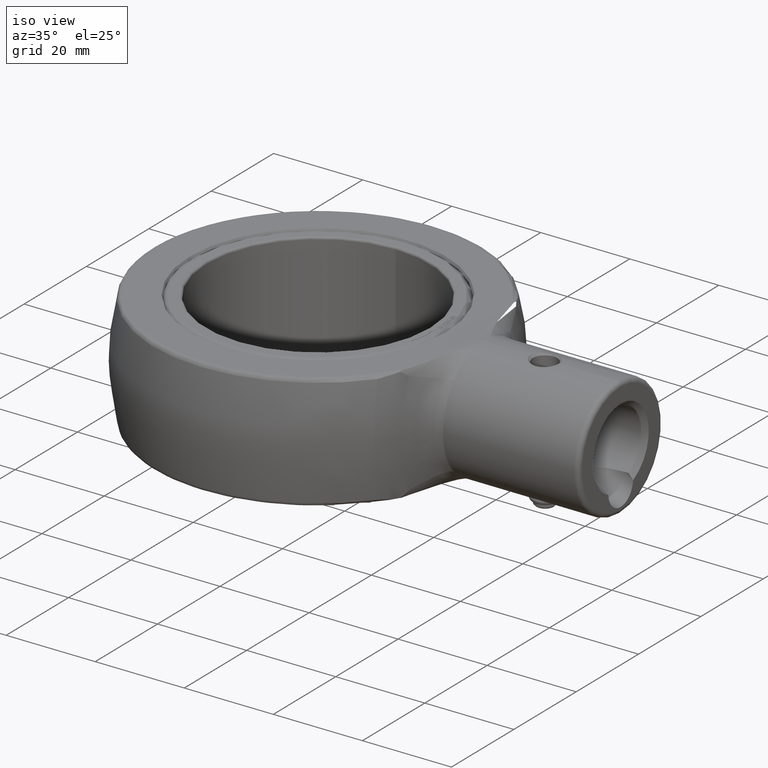
[diagram: clean part render]
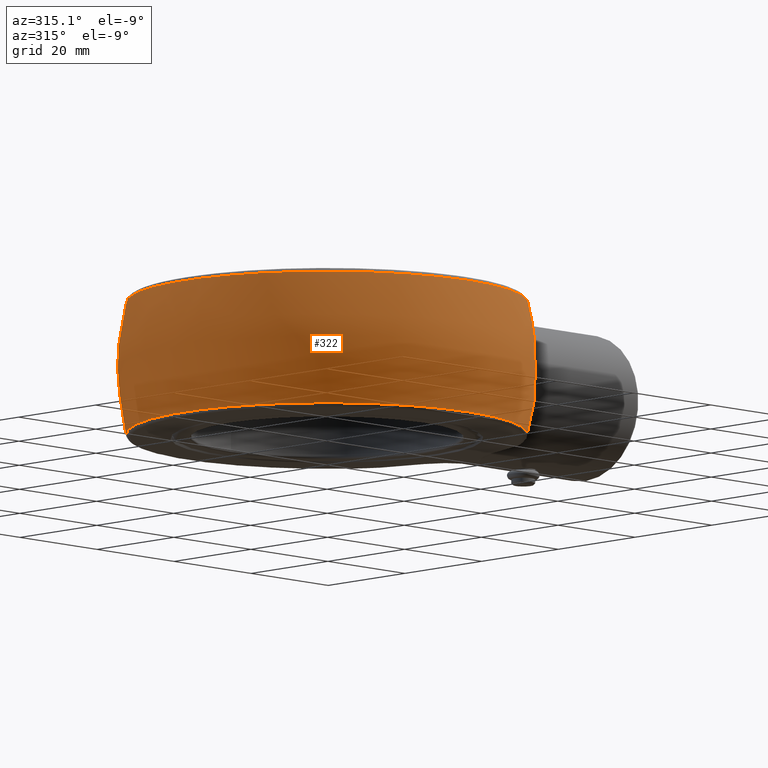
[diagram: tour spotlight — one face highlighted and labeled with its STEP entity id]
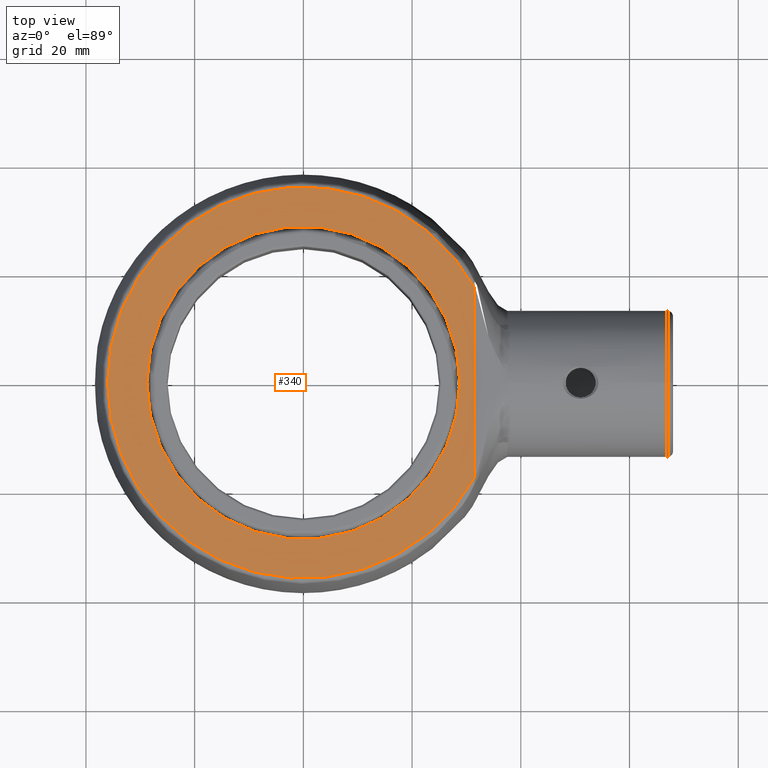
[diagram: tour spotlight — one face highlighted and labeled with its STEP entity id]
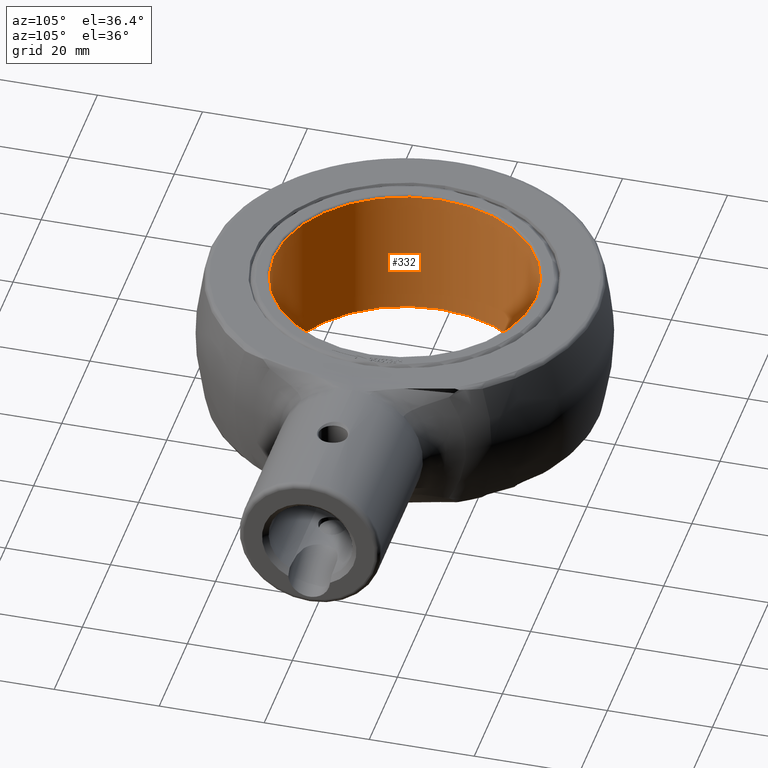
[diagram: tour spotlight — one face highlighted and labeled with its STEP entity id]
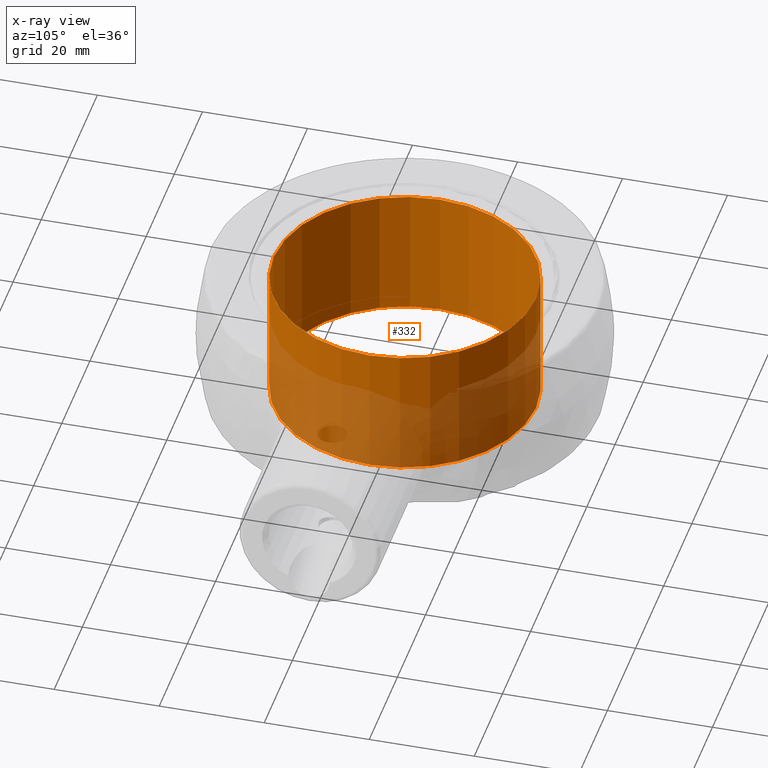
[diagram: x-ray of the same camera — body ghosted, this tour face saturated]
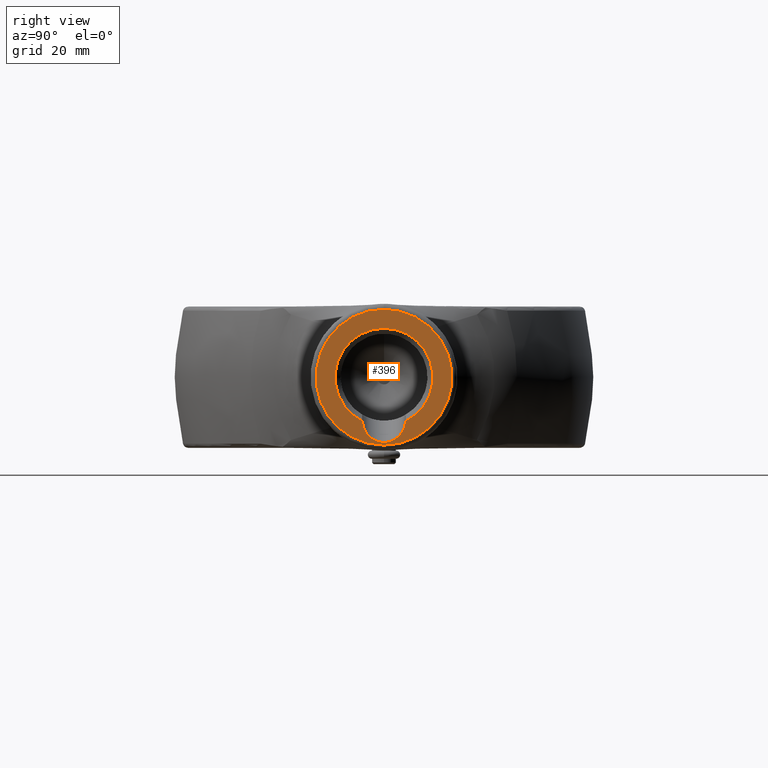
[diagram: tour spotlight — one face highlighted and labeled with its STEP entity id]
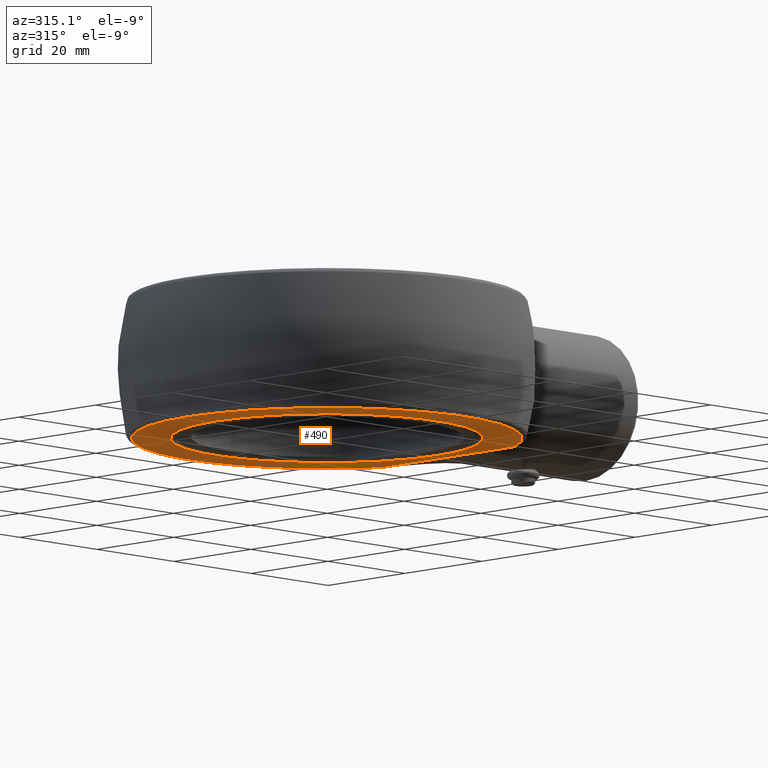
[diagram: tour spotlight — one face highlighted and labeled with its STEP entity id]
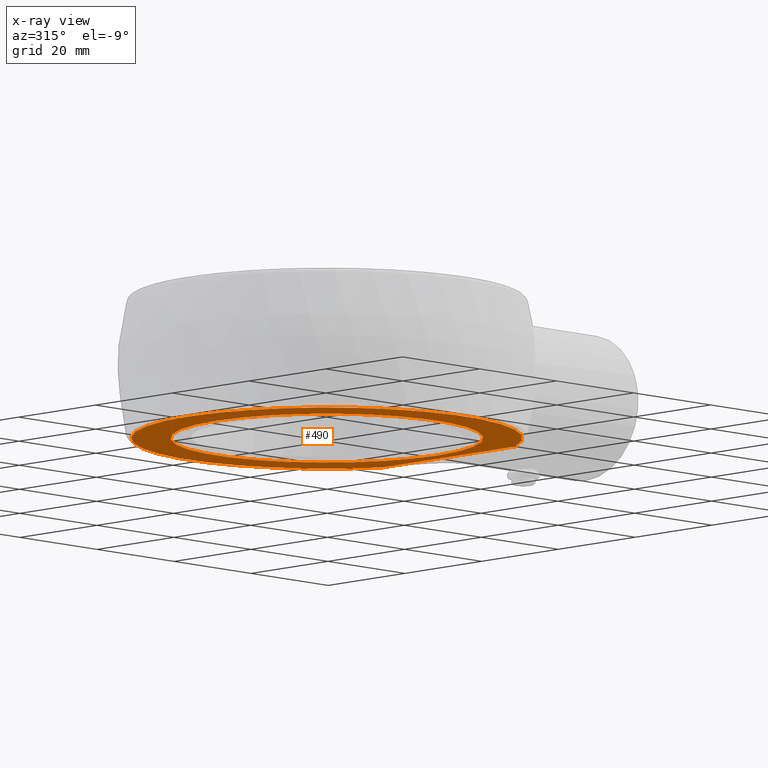
[diagram: x-ray of the same camera — body ghosted, this tour face saturated]
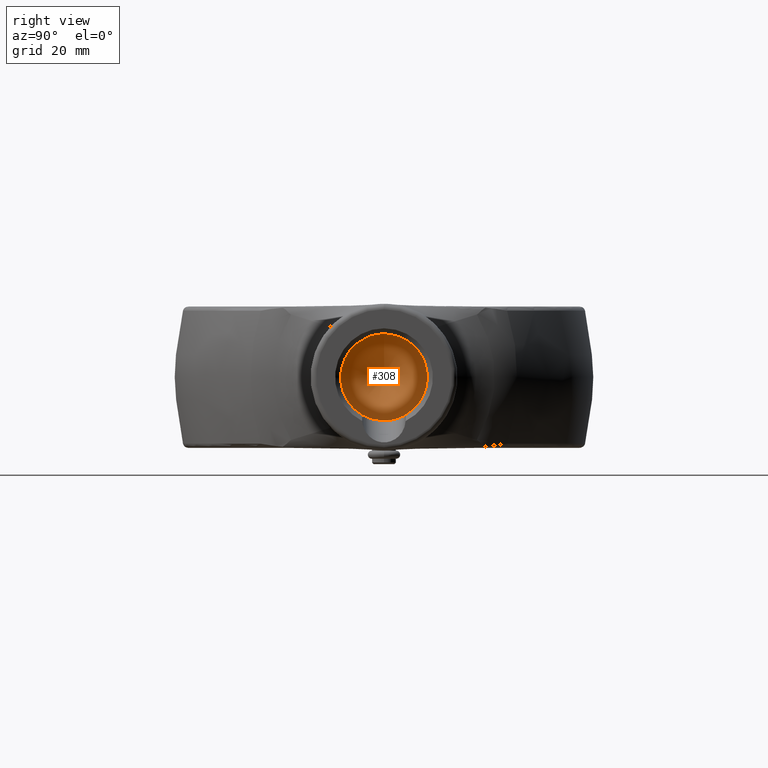
[diagram: tour spotlight — one face highlighted and labeled with its STEP entity id]
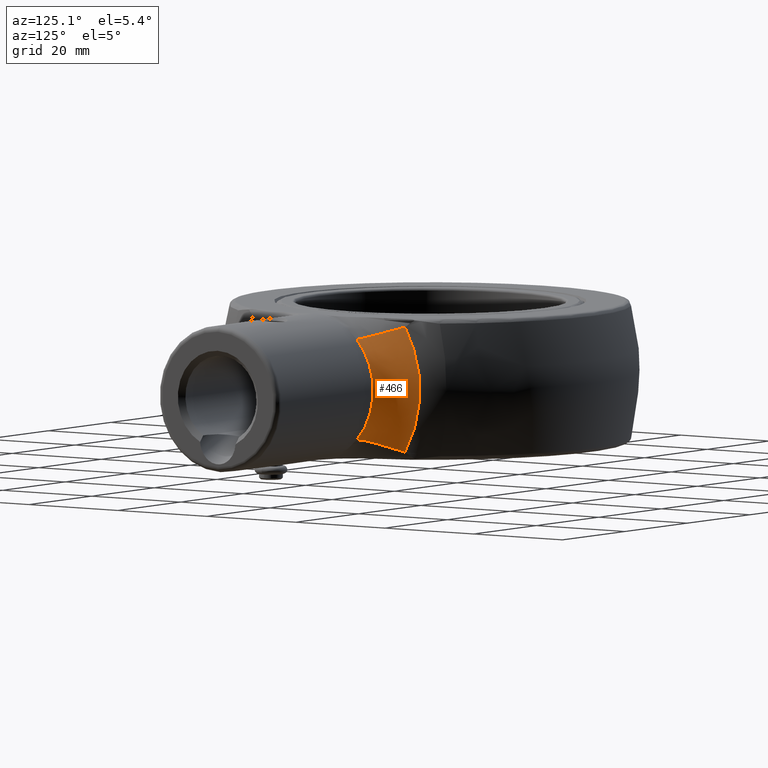
[diagram: tour spotlight — one face highlighted and labeled with its STEP entity id]
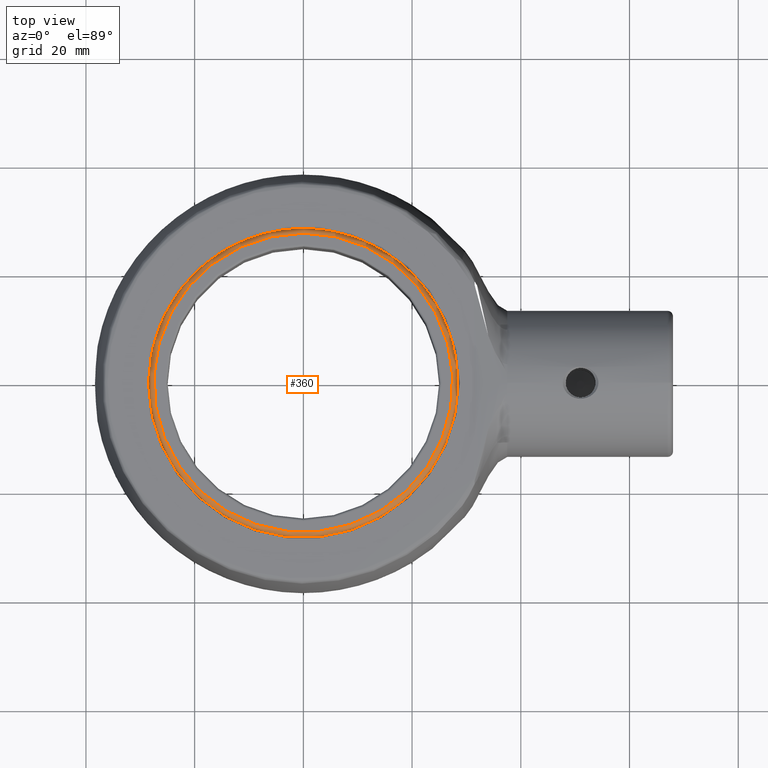
[diagram: tour spotlight — one face highlighted and labeled with its STEP entity id]
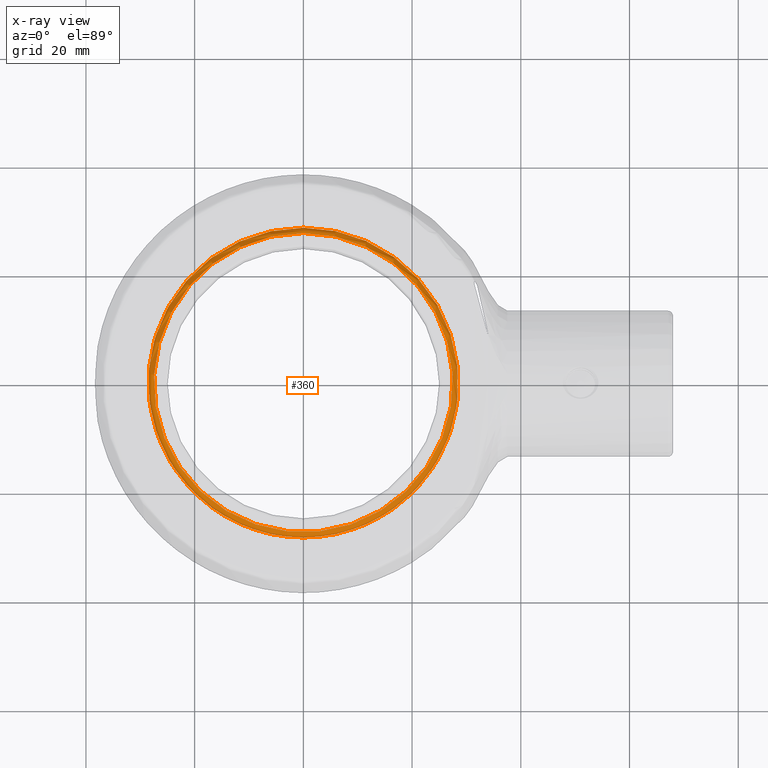
[diagram: x-ray of the same camera — body ghosted, this tour face saturated]
A machine part: a face-by-face anatomy tour. The part has 132 B-rep faces; the first image is the clean iso view, then the 8 largest visible faces are spotlighted one at a time (largest first), each with its STEP entity span.

Face 1 — auxiliary view, entity #322. In plain terms, the highlighted face is a freeform B-spline surface patch.
Definition (entity closure, byte-faithful):
#322 = ADVANCED_FACE( '', ( #688 ), #689, .T. );
#688 = FACE_OUTER_BOUND( '', #1222, .T. );
#689 = ( BOUNDED_SURFACE(  )B_SPLINE_SURFACE( 3, 3, ( ( #1225, #1226, #1227, #1228, #1229, #1230, #1231 ), ( #1232, #1233, #1234, #1235, #1236, #1237, #1238 ), ( #1239, #1240, #1241, #1242, #1243, #1244, #1245 ), ( #1246, #1247, #1248, #1249, #1250, #1251, #1252 ) ), .UNSPECIFIED., .F., .F., .F. )B_SPLINE_SURFACE_WITH_KNOTS( ( 4, 4 ), ( 4, 3, 4 ), ( 0.629286443867117, 5.65389888873463 ), ( -0.247414445467668, 4.90996132640475E-014, 0.247414445467766 ), .UNSPECIFIED. )GEOMETRIC_REPRESENTATION_ITEM(  )RATIONAL_B_SPLINE_SURFACE( ( ( 1.00000000000000, 0.539651481452843, 0.539651481452843, 1.00000000000000, 0.539651481452843, 0.539651481452843, 1.00000000000000 ), ( 0.979699239195622, 0.528696145810140, 0.528696145810140, 0.979699239195622, 0.528696145810140, 0.528696145810140, 0.979699239195622 ), ( 0.979699239195622, 0.528696145810140, 0.528696145810140, 0.979699239195622, 0.528696145810140, 0.528696145810140, 0.979699239195622 ), ( 1.00000000000000, 0.539651481452843, 0.539651481452843, 1.00000000000000, 0.539651481452843, 0.539651481452843, 1.00000000000000 ) ) )REPRESENTATION_ITEM( '' )SURFACE(  ) );
#1222 = EDGE_LOOP( '', ( #3517, #3518, #3519, #3520 ) );
#1225 = CARTESIAN_POINT( '', ( 29.8943283423282, 21.7637409311382, 12.2448979591884 ) );
#1226 = CARTESIAN_POINT( '', ( 4.32808645377582, 56.8811241013393, 12.2448979591884 ) );
#1227 = CARTESIAN_POINT( '', ( -36.9774434918154, 43.4380395988691, 12.2448979591884 ) );
#1228 = CARTESIAN_POINT( '', ( -36.9774429396711, -4.70023235610295E-007, 12.2448979591884 ) );
#1229 = CARTESIAN_POINT( '', ( -36.9774423875267, -43.4380405389155, 12.2448979591884 ) );
#1230 = CARTESIAN_POINT( '', ( 4.32808789981685, -56.8811239913100, 12.2448979591884 ) );
#1231 = CARTESIAN_POINT( '', ( 29.8943288956095, -21.7637401711598, 12.2448979591884 ) );
#1232 = CARTESIAN_POINT( '', ( 31.5440407136060, 22.9647685056078, 4.16620988336752 ) );
#1233 = CARTESIAN_POINT( '', ( 4.56693101602826, 60.0200972552972, 4.16620988336752 ) );
#1234 = CARTESIAN_POINT( '', ( -39.0180361182201, 45.8351588948676, 4.16620988336752 ) );
#1235 = CARTESIAN_POINT( '', ( -39.0180355356057, -4.95961372665166E-007, 4.16620988336752 ) );
#1236 = CARTESIAN_POINT( '', ( -39.0180349529914, -45.8351598867903, 4.16620988336752 ) );
#1237 = CARTESIAN_POINT( '', ( 4.56693254186877, -60.0200971391959, 4.16620988336752 ) );
#1238 = CARTESIAN_POINT( '', ( 31.5440412974201, -22.9647677036902, 4.16620988336752 ) );
#1239 = CARTESIAN_POINT( '', ( 31.5440407136064, 22.9647685056081, -4.16620988336260 ) );
#1240 = CARTESIAN_POINT( '', ( 4.56693101602830, 60.0200972552978, -4.16620988336260 ) );
#1241 = CARTESIAN_POINT( '', ( -39.0180361182205, 45.8351588948681, -4.16620988336260 ) );
#1242 = CARTESIAN_POINT( '', ( -39.0180355356062, -4.95961372665166E-007, -4.16620988336260 ) );
#1243 = CARTESIAN_POINT( '', ( -39.0180349529918, -45.8351598867908, -4.16620988336260 ) );
#1244 = CARTESIAN_POINT( '', ( 4.56693254186882, -60.0200971391965, -4.16620988336260 ) );
#1245 = CARTESIAN_POINT( '', ( 31.5440412974204, -22.9647677036904, -4.16620988336260 ) );
#1246 = CARTESIAN_POINT( '', ( 29.8943283423292, 21.7637409311389, -12.2448979591837 ) );
#1247 = CARTESIAN_POINT( '', ( 4.32808645377596, 56.8811241013411, -12.2448979591837 ) );
#1248 = CARTESIAN_POINT( '', ( -36.9774434918167, 43.4380395988705, -12.2448979591837 ) );
#1249 = CARTESIAN_POINT( '', ( -36.9774429396722, -4.70023239079742E-007, -12.2448979591837 ) );
#1250 = CARTESIAN_POINT( '', ( -36.9774423875278, -43.4380405389169, -12.2448979591837 ) );
#1251 = CARTESIAN_POINT( '', ( 4.32808789981700, -56.8811239913118, -12.2448979591837 ) );
#1252 = CARTESIAN_POINT( '', ( 29.8943288956105, -21.7637401711605, -12.2448979591837 ) );
#3517 = ORIENTED_EDGE( '', *, *, #4612, .F. );
#3518 = ORIENTED_EDGE( '', *, *, #4613, .T. );
#3519 = ORIENTED_EDGE( '', *, *, #4614, .T. );
#3520 = ORIENTED_EDGE( '', *, *, #4615, .T. );
#4612 = EDGE_CURVE( '', #5143, #5144, #5145, .T. );
#4613 = EDGE_CURVE( '', #5143, #5146, #5147, .T. );
#4614 = EDGE_CURVE( '', #5146, #5148, #5149, .T. );
#4615 = EDGE_CURVE( '', #5148, #5144, #5150, .T. );
#5143 = VERTEX_POINT( '', #6406 );
#5144 = VERTEX_POINT( '', #6407 );
#5145 = CIRCLE( '', #6408, 36.9774429396723 );
#5146 = VERTEX_POINT( '', #6409 );
#5147 = B_SPLINE_CURVE_WITH_KNOTS( '', 3, ( #6410, #6411, #6412, #6413, #6414, #6415, #6416, #6417, #6418, #6419, #6420, #6421, #6422, #6423, #6424, #6425, #6426, #6427, #6428, #6429, #6430, #6431, #6432, #6433, #6434, #6435, #6436, #6437, #6438, #6439, #6440, #6441, #6442, #6443, #6444, #6445, #6446, #6447, #6448, #6449, #6450, #6451, #6452, #6453, #6454, #6455, #6456, #6457, #6458, #6459, #6460, #6461, #6462, #6463 ), .UNSPECIFIED., .F., .F., ( 4, 2, 2, 2, 1, 1, 1, 2, 2, 1, 1, 2, 2, 1, 1, 1, 2, 2, 1, 2, 2, 1, 1, 2, 1, 1, 2, 1, 1, 1, 2, 2, 2, 2, 4 ), ( 4.85928125488946E-015, 0.00154237255702064, 0.00231355883552853, 0.00269915197478248, 0.00308474511403643, 0.00385593139254432, 0.00462711767105221, 0.00539830394956010, 0.00616949022806800, 0.00694067650657589, 0.00771186278508378, 0.00848304906359167, 0.00925423534209957, 0.0100254216206075, 0.0107966078991154, 0.0115677941776232, 0.0123389804561311, 0.0131101667346390, 0.0138813530131469, 0.0146525392916548, 0.0150381324309088, 0.0152309290005357, 0.0154237255701627, 0.0161949118486706, 0.0169660981271785, 0.0177372844056864, 0.0185084706841943, 0.0192796569627022, 0.0200508432412101, 0.0208220295197180, 0.0215932157982259, 0.0219788089374799, 0.0223644020767338, 0.0231355883552417, 0.0246779609122575 ), .UNSPECIFIED. );
#5148 = VERTEX_POINT( '', #6464 );
#5149 = CIRCLE( '', #6465, 36.9774429396723 );
#5150 = B_SPLINE_CURVE_WITH_KNOTS( '', 3, ( #6466, #6467, #6468, #6469, #6470, #6471, #6472, #6473, #6474, #6475, #6476, #6477, #6478, #6479, #6480, #6481, #6482, #6483, #6484, #6485, #6486, #6487, #6488, #6489, #6490, #6491, #6492, #6493, #6494, #6495, #6496, #6497, #6498, #6499, #6500, #6501, #6502, #6503, #6504, #6505, #6506, #6507, #6508, #6509, #6510, #6511, #6512, #6513, #6514, #6515, #6516, #6517, #6518, #6519 ), .UNSPECIFIED., .F., .F., ( 4, 2, 2, 2, 1, 1, 1, 2, 2, 1, 1, 2, 2, 1, 1, 1, 2, 2, 1, 2, 2, 1, 1, 2, 1, 1, 2, 1, 1, 1, 2, 2, 2, 2, 4 ), ( 0.000000000000000, 0.00154237218361602, 0.00231355827542402, 0.00269915132132802, 0.00308474436723202, 0.00385593045904002, 0.00462711655084801, 0.00539830264265601, 0.00616948873446401, 0.00694067482627200, 0.00771186091808000, 0.00848304700988799, 0.00925423310169599, 0.0100254191935040, 0.0107966052853120, 0.0115677913771200, 0.0123389774689280, 0.0131101635607360, 0.0138813496525440, 0.0146525357443520, 0.0150381287902560, 0.0152309253132080, 0.0154237218361600, 0.0161949079279680, 0.0169660940197760, 0.0177372801115840, 0.0185084662033920, 0.0192796522952000, 0.0200508383870080, 0.0208220244788160, 0.0215932105706240, 0.0219788036165280, 0.0223643966624320, 0.0231355827542400, 0.0246779549378560 ), .UNSPECIFIED. );
#6406 = CARTESIAN_POINT( '', ( 29.2328142426363, 22.6445105447708, 12.2448979591837 ) );
#6407 = CARTESIAN_POINT( '', ( 29.2328104763663, -22.6445154068170, 12.2448979591837 ) );
#6408 = AXIS2_PLACEMENT_3D( '', #8024, #8025, #8026 );
#6409 = CARTESIAN_POINT( '', ( 29.2328113888119, 22.6445142289004, -12.2448979591837 ) );
#6410 = CARTESIAN_POINT( '', ( 29.2328142426353, 22.6445105447701, 12.2448979591884 ) );
#6411 = CARTESIAN_POINT( '', ( 29.2645161411204, 22.8088594160452, 11.7472237668461 ) );
#6412 = CARTESIAN_POINT( '', ( 29.2957243803255, 22.9603639688148, 11.2480296797230 ) );
#6413 = CARTESIAN_POINT( '', ( 29.3412179173516, 23.1697044278590, 10.4971001562029 ) );
#6414 = CARTESIAN_POINT( '', ( 29.3561598524112, 23.2364995550760, 10.2464339570533 ) );
#6415 = CARTESIAN_POINT( '', ( 29.3781373567005, 23.3323995075382, 9.86991883267990 ) );
#6416 = CARTESIAN_POINT( '', ( 29.3853846198346, 23.3636579007224, 9.74432848959739 ) );
#6417 = CARTESIAN_POINT( '', ( 29.3997424469967, 23.4247418931999, 9.49297588610308 ) );
#6418 = CARTESIAN_POINT( '', ( 29.4210898192104, 23.5141993979476, 9.11568729901739 ) );
#6419 = CARTESIAN_POINT( '', ( 29.4555350439036, 23.6527431248752, 8.48560317608981 ) );
#6420 = CARTESIAN_POINT( '', ( 29.4945436448488, 23.8028950549606, 7.72754742373591 ) );
#6421 = CARTESIAN_POINT( '', ( 29.5187368571013, 23.8926631773670, 7.22091305239744 ) );
#6422 = CARTESIAN_POINT( '', ( 29.5419420613533, 23.9773947412740, 6.71365961170200 ) );
#6423 = CARTESIAN_POINT( '', ( 29.5530422710075, 24.0172523203196, 6.45972429404276 ) );
#6424 = CARTESIAN_POINT( '', ( 29.5742852796128, 24.0919159770131, 5.95123372686326 ) );
#6425 = CARTESIAN_POINT( '', ( 29.5945450774769, 24.1615593666073, 5.44212613931742 ) );
#6426 = CARTESIAN_POINT( '', ( 29.6215042408585, 24.2515833348155, 4.67667236046842 ) );
#6427 = CARTESIAN_POINT( '', ( 29.6369670140362, 24.3022506604412, 4.16520110532109 ) );
#6428 = CARTESIAN_POINT( '', ( 29.6511211442461, 24.3483058191892, 3.65315120967681 ) );
#6429 = CARTESIAN_POINT( '', ( 29.6575392578517, 24.3690328943070, 3.39683746104258 ) );
#6430 = CARTESIAN_POINT( '', ( 29.6690963189215, 24.4058296484746, 2.88362687819902 ) );
#6431 = CARTESIAN_POINT( '', ( 29.6793875648103, 24.4379528705845, 2.36983170631942 ) );
#6432 = CARTESIAN_POINT( '', ( 29.6906334920376, 24.4725407702270, 1.59742340775911 ) );
#6433 = CARTESIAN_POINT( '', ( 29.6974645880773, 24.4937309352665, 0.823316412307036 ) );
#6434 = CARTESIAN_POINT( '', ( 29.6990517090536, 24.4988935852422, 0.306108141656163 ) );
#6435 = CARTESIAN_POINT( '', ( 29.6992075084867, 24.4994730807223, -0.211678933334755 ) );
#6436 = CARTESIAN_POINT( '', ( 29.6985847532854, 24.4974530149922, -0.470863574556190 ) );
#6437 = CARTESIAN_POINT( '', ( 29.6958582665115, 24.4888441972238, -0.989811408212527 ) );
#6438 = CARTESIAN_POINT( '', ( 29.6916466606508, 24.4756717305207, -1.50933732299537 ) );
#6439 = CARTESIAN_POINT( '', ( 29.6844083157463, 24.4533348664414, -2.03002539034707 ) );
#6440 = CARTESIAN_POINT( '', ( 29.6778725449792, 24.4330653883755, -2.42098583251234 ) );
#6441 = CARTESIAN_POINT( '', ( 29.6755099662303, 24.4257220615385, -2.55138011181523 ) );
#6442 = CARTESIAN_POINT( '', ( 29.6716981007550, 24.4138106312540, -2.74708439419478 ) );
#6443 = CARTESIAN_POINT( '', ( 29.6690668562974, 24.4055684800641, -2.87762448632113 ) );
#6444 = CARTESIAN_POINT( '', ( 29.6606576447294, 24.3790718747205, -3.26889135322233 ) );
#6445 = CARTESIAN_POINT( '', ( 29.6526249195404, 24.3532548104885, -3.59420024413923 ) );
#6446 = CARTESIAN_POINT( '', ( 29.6384539207133, 24.3072090761026, -4.11374652289245 ) );
#6447 = CARTESIAN_POINT( '', ( 29.6229595060950, 24.2564305901847, -4.63234569630971 ) );
#6448 = CARTESIAN_POINT( '', ( 29.5958815164875, 24.1659900413963, -5.40739539669126 ) );
#6449 = CARTESIAN_POINT( '', ( 29.5754848143176, 24.0959686296601, -5.92216593078862 ) );
#6450 = CARTESIAN_POINT( '', ( 29.5540740437957, 24.0209073795248, -6.43594624065645 ) );
#6451 = CARTESIAN_POINT( '', ( 29.5316789484773, 23.9407708070515, -6.94873106548044 ) );
#6452 = CARTESIAN_POINT( '', ( 29.4951610143193, 23.8053205305200, -7.71491949171026 ) );
#6453 = CARTESIAN_POINT( '', ( 29.4559517623969, 23.6543323569972, -8.47807522513373 ) );
#6454 = CARTESIAN_POINT( '', ( 29.4282707066673, 23.5429852184694, -8.98477392726121 ) );
#6455 = CARTESIAN_POINT( '', ( 29.4070552779845, 23.4553004263915, -9.36399563748139 ) );
#6456 = CARTESIAN_POINT( '', ( 29.3999079670817, 23.4253760069571, -9.49026908962106 ) );
#6457 = CARTESIAN_POINT( '', ( 29.3854857125917, 23.3641026134242, -9.74254347457767 ) );
#6458 = CARTESIAN_POINT( '', ( 29.3782065284404, 23.3327587209666, -9.86854516167513 ) );
#6459 = CARTESIAN_POINT( '', ( 29.3561483611729, 23.2366178489415, -10.2461452631496 ) );
#6460 = CARTESIAN_POINT( '', ( 29.3411683897913, 23.1696885688804, -10.4973353040574 ) );
#6461 = CARTESIAN_POINT( '', ( 29.2956131506251, 22.9600704320736, -11.2492243351492 ) );
#6462 = CARTESIAN_POINT( '', ( 29.2644363172532, 22.8085427522780, -11.7482412763350 ) );
#6463 = CARTESIAN_POINT( '', ( 29.2328113888119, 22.6445142289004, -12.2448979591837 ) );
#6464 = CARTESIAN_POINT( '', ( 29.2328148183087, -22.6445098016096, -12.2448979591837 ) );
#6465 = AXIS2_PLACEMENT_3D( '', #8027, #8028, #8029 );
#6466 = CARTESIAN_POINT( '', ( 29.2328148183087, -22.6445098016096, -12.2448979591837 ) );
#6467 = CARTESIAN_POINT( '', ( 29.2645171979091, -22.8088580226381, -11.7472238486435 ) );
#6468 = CARTESIAN_POINT( '', ( 29.2957256667215, -22.9603622526119, -11.2480298719372 ) );
#6469 = CARTESIAN_POINT( '', ( 29.3412193763211, -23.1697024494539, -10.4971005316929 ) );
#6470 = CARTESIAN_POINT( '', ( 29.3561613765650, -23.2364974814461, -10.2464343923794 ) );
#6471 = CARTESIAN_POINT( '', ( 29.3781394058994, -23.3323967729583, -9.86991930864949 ) );
#6472 = CARTESIAN_POINT( '', ( 29.3853875090824, -23.3636541354927, -9.74432890332391 ) );
#6473 = CARTESIAN_POINT( '', ( 29.3997430927588, -23.4247408550308, -9.49297662234455 ) );
#6474 = CARTESIAN_POINT( '', ( 29.4210880311057, -23.5142013067634, -9.11568841163968 ) );
#6475 = CARTESIAN_POINT( '', ( 29.4555325050664, -23.6527459101241, -8.48560453712816 ) );
#6476 = CARTESIAN_POINT( '', ( 29.4945420822701, -23.8028966286263, -7.72754886921548 ) );
#6477 = CARTESIAN_POINT( '', ( 29.5187358446926, -23.8926640765841, -7.22091456503756 ) );
#6478 = CARTESIAN_POINT( '', ( 29.5419414811599, -23.9773951129752, -6.71366120441737 ) );
#6479 = CARTESIAN_POINT( '', ( 29.5530420417696, -24.0172522675869, -6.45972591144262 ) );
#6480 = CARTESIAN_POINT( '', ( 29.5742856980097, -24.0919151452790, -5.95123539935739 ) );
#6481 = CARTESIAN_POINT( '', ( 29.5945455731325, -24.1615584478335, -5.44212793056362 ) );
#6482 = CARTESIAN_POINT( '', ( 29.6215048395580, -24.2515823099512, -4.67667432987648 ) );
#6483 = CARTESIAN_POINT( '', ( 29.6369679516900, -24.3022492452771, -4.16520316233532 ) );
#6484 = CARTESIAN_POINT( '', ( 29.6511221946562, -24.3483042890691, -3.65315337923635 ) );
#6485 = CARTESIAN_POINT( '', ( 29.6575404092403, -24.3690312541575, -3.39683968163089 ) );
#6486 = CARTESIAN_POINT( '', ( 29.6690956083591, -24.4058302793277, -2.88362943209229 ) );
#6487 = CARTESIAN_POINT( '', ( 29.6793858991938, -24.4379546840686, -2.36983449151453 ) );
#6488 = CARTESIAN_POINT( '', ( 29.6906329160181, -24.4725413257143, -1.59742625558640 ) );
#6489 = CARTESIAN_POINT( '', ( 29.6974660914841, -24.4937290400954, -0.823319209577849 ) );
#6490 = CARTESIAN_POINT( '', ( 29.6990533504452, -24.4988915661998, -0.306111044498714 ) );
#6491 = CARTESIAN_POINT( '', ( 29.6992073307972, -24.4994733162916, 0.211675703733647 ) );
#6492 = CARTESIAN_POINT( '', ( 29.6985830509767, -24.4974551289366, 0.470860111787696 ) );
#6493 = CARTESIAN_POINT( '', ( 29.6958555724288, -24.4888475781398, 0.989807711904645 ) );
#6494 = CARTESIAN_POINT( '', ( 29.6916437658800, -24.4756754232636, 1.50933348285478 ) );
#6495 = CARTESIAN_POINT( '', ( 29.6844058773378, -24.4533380762499, 2.03002148191125 ) );
#6496 = CARTESIAN_POINT( '', ( 29.6778706372298, -24.4330680059620, 2.42098189491349 ) );
#6497 = CARTESIAN_POINT( '', ( 29.6755082698364, -24.4257244396419, 2.55137616852097 ) );
#6498 = CARTESIAN_POINT( '', ( 29.6716967928257, -24.4138125623990, 2.74708045071254 ) );
#6499 = CARTESIAN_POINT( '', ( 29.6690658315433, -24.4055700832249, 2.87762054858825 ) );
#6500 = CARTESIAN_POINT( '', ( 29.6606577147348, -24.3790721988234, 3.26888738952331 ) );
#6501 = CARTESIAN_POINT( '', ( 29.6526259577543, -24.3532540008258, 3.59419624879676 ) );
#6502 = CARTESIAN_POINT( '', ( 29.6384553442063, -24.3072078410795, 4.11374268294465 ) );
#6503 = CARTESIAN_POINT( '', ( 29.6229606938417, -24.2564296677128, 4.63234212117796 ) );
#6504 = CARTESIAN_POINT( '', ( 29.5958818248413, -24.1659901977104, 5.40739230894279 ) );
#6505 = CARTESIAN_POINT( '', ( 29.5754846033240, -24.0959694138740, 5.92216315424192 ) );
#6506 = CARTESIAN_POINT( '', ( 29.5540733391638, -24.0209087558223, 6.43594376992696 ) );
#6507 = CARTESIAN_POINT( '', ( 29.5316791596796, -23.9407710878625, 6.94872865025916 ) );
#6508 = CARTESIAN_POINT( '', ( 29.4951635221982, -23.8053180482037, 7.71491699335678 ) );
#6509 = CARTESIAN_POINT( '', ( 29.4559558313907, -23.6543279679106, 8.47807277015515 ) );
#6510 = CARTESIAN_POINT( '', ( 29.4282738306050, -23.5429819202046, 8.98477185135202 ) );
#6511 = CARTESIAN_POINT( '', ( 29.4070562561606, -23.4552996694414, 9.36399410178665 ) );
#6512 = CARTESIAN_POINT( '', ( 29.3999079894044, -23.4253763857435, 9.49026777686657 ) );
#6513 = CARTESIAN_POINT( '', ( 29.3854832175242, -23.3641059931666, 9.74254271615295 ) );
#6514 = CARTESIAN_POINT( '', ( 29.3782048657475, -23.3327610912675, 9.86854430771703 ) );
#6515 = CARTESIAN_POINT( '', ( 29.3561473725238, -23.2366193748262, 10.2461444467681 ) );
#6516 = CARTESIAN_POINT( '', ( 29.3411673556101, -23.1696901231043, 10.4973346004813 ) );
#6517 = CARTESIAN_POINT( '', ( 29.2956118447039, -22.9600722294572, 11.2492239934829 ) );
#6518 = CARTESIAN_POINT( '', ( 29.2644348498859, -22.8085446825079, 11.7482411716033 ) );
#6519 = CARTESIAN_POINT( '', ( 29.2328104763663, -22.6445154068169, 12.2448979591838 ) );
#8024 = CARTESIAN_POINT( '', ( 0.000000000000000, 0.000000000000000, 12.2448979591837 ) );
#8025 = DIRECTION( '', ( 0.000000000000000, 0.000000000000000, 1.00000000000000 ) );
#8026 = DIRECTION( '', ( 1.00000000000000, 0.000000000000000, 0.000000000000000 ) );
#8027 = CARTESIAN_POINT( '', ( 0.000000000000000, 0.000000000000000, -12.2448979591837 ) );
#8028 = DIRECTION( '', ( 0.000000000000000, 0.000000000000000, 1.00000000000000 ) );
#8029 = DIRECTION( '', ( 1.00000000000000, 0.000000000000000, 0.000000000000000 ) );

Face 2 — top view, entity #340. In plain terms, the highlighted planar face has unit normal (0, 0, 1).
Definition (entity closure, byte-faithful):
#340 = ADVANCED_FACE( '', ( #720, #721 ), #722, .T. );
#720 = FACE_OUTER_BOUND( '', #1290, .T. );
#721 = FACE_BOUND( '', #1291, .T. );
#722 = PLANE( '', #1292 );
#1290 = EDGE_LOOP( '', ( #3625, #3626 ) );
#1291 = EDGE_LOOP( '', ( #3627 ) );
#1292 = AXIS2_PLACEMENT_3D( '', #3628, #3629, #3630 );
#3625 = ORIENTED_EDGE( '', *, *, #4639, .T. );
#3626 = ORIENTED_EDGE( '', *, *, #4640, .T. );
#3627 = ORIENTED_EDGE( '', *, *, #4469, .T. );
#3628 = CARTESIAN_POINT( '', ( 36.0078940808788, 0.000000000000000, 13.0000000000000 ) );
#3629 = DIRECTION( '', ( 0.000000000000000, 0.000000000000000, 1.00000000000000 ) );
#3630 = DIRECTION( '', ( 1.00000000000000, 0.000000000000000, 0.000000000000000 ) );
#4469 = EDGE_CURVE( '', #4911, #4911, #4912, .T. );
#4639 = EDGE_CURVE( '', #5184, #5185, #5186, .T. );
#4640 = EDGE_CURVE( '', #5185, #5184, #5187, .T. );
#4911 = VERTEX_POINT( '', #5677 );
#4912 = CIRCLE( '', #5678, 28.7886751345948 );
#5184 = VERTEX_POINT( '', #6731 );
#5185 = VERTEX_POINT( '', #6732 );
#5186 = CIRCLE( '', #6733, 36.0078940808788 );
#5187 = LINE( '', #6734, #6735 );
#5677 = CARTESIAN_POINT( '', ( -28.7886751345948, 0.000000000000000, 13.0000000000000 ) );
#5678 = AXIS2_PLACEMENT_3D( '', #7957, #7958, #7959 );
#6731 = CARTESIAN_POINT( '', ( 31.5000000000000, 17.4447251666453, 13.0000000000000 ) );
#6732 = CARTESIAN_POINT( '', ( 31.5000000000000, -17.4447251666453, 13.0000000000000 ) );
#6733 = AXIS2_PLACEMENT_3D( '', #8041, #8042, #8043 );
#6734 = CARTESIAN_POINT( '', ( 31.5000000000000, 0.000000000000000, 13.0000000000000 ) );
#6735 = VECTOR( '', #8044, 1000.00000000000 );
#7957 = CARTESIAN_POINT( '', ( 0.000000000000000, 0.000000000000000, 13.0000000000000 ) );
#7958 = DIRECTION( '', ( 0.000000000000000, 0.000000000000000, -1.00000000000000 ) );
#7959 = DIRECTION( '', ( -1.00000000000000, 0.000000000000000, 0.000000000000000 ) );
#8041 = CARTESIAN_POINT( '', ( 0.000000000000000, 0.000000000000000, 13.0000000000000 ) );
#8042 = DIRECTION( '', ( 0.000000000000000, 0.000000000000000, 1.00000000000000 ) );
#8043 = DIRECTION( '', ( 1.00000000000000, 0.000000000000000, 0.000000000000000 ) );
#8044 = DIRECTION( '', ( 0.000000000000000, 1.00000000000000, 0.000000000000000 ) );

Face 3 — auxiliary view, entity #332. An x-ray twin of the same camera follows (body ghosted, this face saturated) — the face is partly hidden behind the body. In plain terms, the highlighted cylindrical surface (bore or boss wall) has radius 25 mm, axis along (0, 0, 1).
Definition (entity closure, byte-faithful):
#332 = ADVANCED_FACE( '', ( #707, #708 ), #709, .F. );
#707 = FACE_OUTER_BOUND( '', #1276, .T. );
#708 = FACE_OUTER_BOUND( '', #1277, .T. );
#709 = CYLINDRICAL_SURFACE( '', #1278, 25.0000000000000 );
#1276 = EDGE_LOOP( '', ( #3576 ) );
#1277 = EDGE_LOOP( '', ( #3577 ) );
#1278 = AXIS2_PLACEMENT_3D( '', #3578, #3579, #3580 );
#3576 = ORIENTED_EDGE( '', *, *, #4442, .T. );
#3577 = ORIENTED_EDGE( '', *, *, #4516, .T. );
#3578 = CARTESIAN_POINT( '', ( 0.000000000000000, 0.000000000000000, 54.0000000000000 ) );
#3579 = DIRECTION( '', ( -0.000000000000000, -0.000000000000000, 1.00000000000000 ) );
#3580 = DIRECTION( '', ( -1.00000000000000, 0.000000000000000, 0.000000000000000 ) );
#4442 = EDGE_CURVE( '', #4864, #4864, #4865, .F. );
#4516 = EDGE_CURVE( '', #4992, #4992, #4993, .F. );
#4864 = VERTEX_POINT( '', #5603 );
#4865 = CIRCLE( '', #5604, 25.0000000000000 );
#4992 = VERTEX_POINT( '', #5859 );
#4993 = CIRCLE( '', #5860, 25.0000000000000 );
#5603 = CARTESIAN_POINT( '', ( 25.0000000000000, 0.000000000000000, -12.5000000000000 ) );
#5604 = AXIS2_PLACEMENT_3D( '', #7940, #7941, #7942 );
#5859 = CARTESIAN_POINT( '', ( -25.0000000000000, 0.000000000000000, 12.5000000000000 ) );
#5860 = AXIS2_PLACEMENT_3D( '', #7988, #7989, #7990 );
#7940 = CARTESIAN_POINT( '', ( 0.000000000000000, 0.000000000000000, -12.5000000000000 ) );
#7941 = DIRECTION( '', ( 0.000000000000000, 0.000000000000000, 1.00000000000000 ) );
#7942 = DIRECTION( '', ( 1.00000000000000, 0.000000000000000, 0.000000000000000 ) );
#7988 = CARTESIAN_POINT( '', ( 0.000000000000000, 0.000000000000000, 12.5000000000000 ) );
#7989 = DIRECTION( '', ( 0.000000000000000, 0.000000000000000, -1.00000000000000 ) );
#7990 = DIRECTION( '', ( -1.00000000000000, 0.000000000000000, 0.000000000000000 ) );

Face 4 — right view, entity #396. In plain terms, the highlighted planar face has unit normal (-1, 0, 0).
Definition (entity closure, byte-faithful):
#396 = ADVANCED_FACE( '', ( #820, #821 ), #822, .F. );
#820 = FACE_OUTER_BOUND( '', #2067, .T. );
#821 = FACE_BOUND( '', #2068, .T. );
#822 = PLANE( '', #2069 );
#2067 = EDGE_LOOP( '', ( #3916 ) );
#2068 = EDGE_LOOP( '', ( #3917, #3918 ) );
#2069 = AXIS2_PLACEMENT_3D( '', #3919, #3920, #3921 );
#3916 = ORIENTED_EDGE( '', *, *, #4753, .T. );
#3917 = ORIENTED_EDGE( '', *, *, #4754, .F. );
#3918 = ORIENTED_EDGE( '', *, *, #4436, .T. );
#3919 = CARTESIAN_POINT( '', ( 68.0000000000000, 0.000000000000000, 0.000000000000000 ) );
#3920 = DIRECTION( '', ( -1.00000000000000, 0.000000000000000, 0.000000000000000 ) );
#3921 = DIRECTION( '', ( 0.000000000000000, 0.000000000000000, 1.00000000000000 ) );
#4436 = EDGE_CURVE( '', #4854, #4852, #4855, .T. );
#4753 = EDGE_CURVE( '', #5350, #5350, #5351, .F. );
#4754 = EDGE_CURVE( '', #4854, #4852, #5352, .F. );
#4852 = VERTEX_POINT( '', #5582 );
#4854 = VERTEX_POINT( '', #5587 );
#4855 = CIRCLE( '', #5588, 9.00000000000000 );
#5350 = VERTEX_POINT( '', #7471 );
#5351 = CIRCLE( '', #7472, 12.5000000000000 );
#5352 = ELLIPSE( '', #7473, 4.25671108990365, 4.00000000000000 );
#5582 = CARTESIAN_POINT( '', ( 68.0000000000000, 3.98809634791307, -8.06815267082635 ) );
#5587 = CARTESIAN_POINT( '', ( 68.0000000000000, -3.98809634791307, -8.06815267082635 ) );
#5588 = AXIS2_PLACEMENT_3D( '', #7931, #7932, #7933 );
#7471 = CARTESIAN_POINT( '', ( 68.0000000000000, 0.000000000000000, 12.5000000000000 ) );
#7472 = AXIS2_PLACEMENT_3D( '', #8095, #8096, #8097 );
#7473 = AXIS2_PLACEMENT_3D( '', #8098, #8099, #8100 );
#7931 = CARTESIAN_POINT( '', ( 68.0000000000000, 0.000000000000000, 3.67273485929464E-015 ) );
#7932 = DIRECTION( '', ( -1.00000000000000, 0.000000000000000, 0.000000000000000 ) );
#7933 = DIRECTION( '', ( 0.000000000000000, 0.000000000000000, 1.00000000000000 ) );
#8095 = CARTESIAN_POINT( '', ( 68.0000000000000, 0.000000000000000, 0.000000000000000 ) );
#8096 = DIRECTION( '', ( -1.00000000000000, 0.000000000000000, 0.000000000000000 ) );
#8097 = DIRECTION( '', ( 0.000000000000000, 0.000000000000000, 1.00000000000000 ) );
#8098 = CARTESIAN_POINT( '', ( 68.0000000000000, 0.000000000000000, -7.74000000000000 ) );
#8099 = DIRECTION( '', ( -1.00000000000000, 0.000000000000000, 0.000000000000000 ) );
#8100 = DIRECTION( '', ( 0.000000000000000, 0.000000000000000, 1.00000000000000 ) );

Face 5 — auxiliary view, entity #490. An x-ray twin of the same camera follows (body ghosted, this face saturated) — the face is partly hidden behind the body. In plain terms, the highlighted planar face has unit normal (0, 0, -1).
Definition (entity closure, byte-faithful):
#490 = ADVANCED_FACE( '', ( #978, #979 ), #980, .T. );
#978 = FACE_OUTER_BOUND( '', #3113, .T. );
#979 = FACE_BOUND( '', #3114, .T. );
#980 = PLANE( '', #3115 );
#3113 = EDGE_LOOP( '', ( #4354, #4355 ) );
#3114 = EDGE_LOOP( '', ( #4356 ) );
#3115 = AXIS2_PLACEMENT_3D( '', #4357, #4358, #4359 );
#4354 = ORIENTED_EDGE( '', *, *, #4582, .F. );
#4355 = ORIENTED_EDGE( '', *, *, #4796, .F. );
#4356 = ORIENTED_EDGE( '', *, *, #4679, .F. );
#4357 = CARTESIAN_POINT( '', ( 28.5000000000000, 0.000000000000000, -13.0000000000000 ) );
#4358 = DIRECTION( '', ( 0.000000000000000, 0.000000000000000, -1.00000000000000 ) );
#4359 = DIRECTION( '', ( -1.00000000000000, 0.000000000000000, 0.000000000000000 ) );
#4582 = EDGE_CURVE( '', #5091, #5097, #5101, .T. );
#4679 = EDGE_CURVE( '', #5247, #5247, #5248, .T. );
#4796 = EDGE_CURVE( '', #5097, #5091, #5404, .T. );
#5091 = VERTEX_POINT( '', #6180 );
#5097 = VERTEX_POINT( '', #6201 );
#5101 = LINE( '', #6213, #6214 );
#5247 = VERTEX_POINT( '', #6867 );
#5248 = CIRCLE( '', #6868, 28.7886751345948 );
#5404 = CIRCLE( '', #7833, 36.0078940808788 );
#6180 = CARTESIAN_POINT( '', ( 31.5000000000000, -17.4447251666455, -13.0000000000000 ) );
#6201 = CARTESIAN_POINT( '', ( 31.5000000000000, 17.4447251666453, -13.0000000000000 ) );
#6213 = CARTESIAN_POINT( '', ( 31.5000000000000, 0.000000000000000, -13.0000000000000 ) );
#6214 = VECTOR( '', #8011, 1000.00000000000 );
#6867 = CARTESIAN_POINT( '', ( -28.7886751345948, 0.000000000000000, -13.0000000000000 ) );
#6868 = AXIS2_PLACEMENT_3D( '', #8079, #8080, #8081 );
#7833 = AXIS2_PLACEMENT_3D( '', #8118, #8119, #8120 );
#8011 = DIRECTION( '', ( 0.000000000000000, 1.00000000000000, 0.000000000000000 ) );
#8079 = CARTESIAN_POINT( '', ( 0.000000000000000, 0.000000000000000, -13.0000000000000 ) );
#8080 = DIRECTION( '', ( 0.000000000000000, 0.000000000000000, -1.00000000000000 ) );
#8081 = DIRECTION( '', ( -1.00000000000000, 0.000000000000000, 0.000000000000000 ) );
#8118 = CARTESIAN_POINT( '', ( 0.000000000000000, 0.000000000000000, -13.0000000000000 ) );
#8119 = DIRECTION( '', ( 0.000000000000000, 0.000000000000000, 1.00000000000000 ) );
#8120 = DIRECTION( '', ( 1.00000000000000, 0.000000000000000, 0.000000000000000 ) );

Face 6 — right view, entity #308. In plain terms, the highlighted conical surface has half-angle 59 deg.
Definition (entity closure, byte-faithful):
#308 = ADVANCED_FACE( '', ( #666, #667 ), #668, .F. );
#666 = FACE_BOUND( '', #1199, .T. );
#667 = FACE_OUTER_BOUND( '', #1200, .T. );
#668 = CONICAL_SURFACE( '', #1201, 8.00000000000000, 1.02974425867665 );
#1199 = EDGE_LOOP( '', ( #3445 ) );
#1200 = EDGE_LOOP( '', ( #3446 ) );
#1201 = AXIS2_PLACEMENT_3D( '', #3447, #3448, #3449 );
#3445 = ORIENTED_EDGE( '', *, *, #4589, .T. );
#3446 = ORIENTED_EDGE( '', *, *, #4590, .F. );
#3447 = CARTESIAN_POINT( '', ( 42.5000000000000, 0.000000000000000, 3.67273485929464E-015 ) );
#3448 = DIRECTION( '', ( 1.00000000000000, -0.000000000000000, -0.000000000000000 ) );
#3449 = DIRECTION( '', ( 0.000000000000000, 0.000000000000000, 1.00000000000000 ) );
#4589 = EDGE_CURVE( '', #5110, #5110, #5111, .T. );
#4590 = EDGE_CURVE( '', #5112, #5112, #5113, .T. );
#5110 = VERTEX_POINT( '', #6276 );
#5111 = B_SPLINE_CURVE_WITH_KNOTS( '', 3, ( #6277, #6278, #6279, #6280, #6281, #6282, #6283, #6284, #6285, #6286, #6287, #6288, #6289, #6290, #6291, #6292, #6293, #6294, #6295, #6296, #6297, #6298, #6299, #6300, #6301, #6302, #6303, #6304, #6305, #6306, #6307, #6308, #6309, #6310, #6311, #6312, #6313, #6314, #6315, #6316, #6317, #6318, #6319, #6320 ), .UNSPECIFIED., .T., .F., ( 2, 2, 2, 2, 2, 2, 2, 2, 2, 2, 2, 2, 2, 2, 2, 2, 2, 2, 2, 2, 2, 2, 2, 2 ), ( -0.000511905358469706, 0.000000000000000, 0.000511905358469708, 0.000767858037704561, 0.00102381071693942, 0.00153571607540912, 0.00204762143387883, 0.00255952679234854, 0.00281547947158339, 0.00307143215081825, 0.00358333750928795, 0.00383929018852281, 0.00409524286775766, 0.00460714822622737, 0.00511905358469708, 0.00563095894316678, 0.00588691162240164, 0.00614286430163649, 0.00665476966010620, 0.00691072233934105, 0.00716667501857590, 0.00767858037704561, 0.00819048573551532, 0.00870239109398502 ), .UNSPECIFIED. );
#5112 = VERTEX_POINT( '', #6321 );
#5113 = CIRCLE( '', #6322, 8.00000000000000 );
#6276 = CARTESIAN_POINT( '', ( 38.4791245413254, -1.12159249424179, -0.673245242682763 ) );
#6277 = CARTESIAN_POINT( '', ( 38.4796916749287, -1.03331954980992, -0.822137470394934 ) );
#6278 = CARTESIAN_POINT( '', ( 38.4785574077220, -1.20986543867365, -0.524353014970591 ) );
#6279 = CARTESIAN_POINT( '', ( 38.4781293144989, -1.26730598613284, -0.361030737838552 ) );
#6280 = CARTESIAN_POINT( '', ( 38.4778537081230, -1.30454148707110, -0.106060092093000 ) );
#6281 = CARTESIAN_POINT( '', ( 38.4778228754011, -1.30860879723752, -0.0208225030709295 ) );
#6282 = CARTESIAN_POINT( '', ( 38.4778854203127, -1.30023837979566, 0.150141968321059 ) );
#6283 = CARTESIAN_POINT( '', ( 38.4779809967993, -1.28750110412145, 0.236435183359070 ) );
#6284 = CARTESIAN_POINT( '', ( 38.4784306807892, -1.22553441234592, 0.485287663798407 ) );
#6285 = CARTESIAN_POINT( '', ( 38.4789632296570, -1.15087437001409, 0.644303404484752 ) );
#6286 = CARTESIAN_POINT( '', ( 38.4801790891223, -0.948682183008535, 0.919205056139186 ) );
#6287 = CARTESIAN_POINT( '', ( 38.4808677658683, -0.818948392253253, 1.03793599174743 ) );
#6288 = CARTESIAN_POINT( '', ( 38.4819940619123, -0.526714990372568, 1.21469232368968 ) );
#6289 = CARTESIAN_POINT( '', ( 38.4824347079567, -0.361903808229912, 1.27439884668145 ) );
#6290 = CARTESIAN_POINT( '', ( 38.4827149313871, -0.107570770097143, 1.31250716303945 ) );
#6291 = CARTESIAN_POINT( '', ( 38.4827471177533, -0.0205365218117574, 1.31678042100911 ) );
#6292 = CARTESIAN_POINT( '', ( 38.4826838351376, 0.150057123158587, 1.30825780350342 ) );
#6293 = CARTESIAN_POINT( '', ( 38.4825899591578, 0.234584666355588, 1.29567775641963 ) );
#6294 = CARTESIAN_POINT( '', ( 38.4821319328406, 0.485782887583214, 1.23215327103648 ) );
#6295 = CARTESIAN_POINT( '', ( 38.4816000071838, 0.642340852494260, 1.15714743909853 ) );
#6296 = CARTESIAN_POINT( '', ( 38.4806777613009, 0.848764229153329, 1.00249177286849 ) );
#6297 = CARTESIAN_POINT( '', ( 38.4803561997607, 0.911706573651065, 0.944832704166060 ) );
#6298 = CARTESIAN_POINT( '', ( 38.4797214892714, 1.02606867812773, 0.817516910895375 ) );
#6299 = CARTESIAN_POINT( '', ( 38.4794064153002, 1.07770989509976, 0.747201634732724 ) );
#6300 = CARTESIAN_POINT( '', ( 38.4785655249965, 1.20862105489633, 0.526574446514857 ) );
#6301 = CARTESIAN_POINT( '', ( 38.4781302916668, 1.26717092119410, 0.360977241460698 ) );
#6302 = CARTESIAN_POINT( '', ( 38.4777632034968, 1.31677204295763, 0.0232832972170925 ) );
#6303 = CARTESIAN_POINT( '', ( 38.4778302257562, 1.30826674237960, -0.152310978459669 ) );
#6304 = CARTESIAN_POINT( '', ( 38.4784267921554, 1.22608087432697, -0.483818646083698 ) );
#6305 = CARTESIAN_POINT( '', ( 38.4789565078954, 1.15191995860697, -0.642603868488073 ) );
#6306 = CARTESIAN_POINT( '', ( 38.4798717641430, 0.999824711396643, -0.849808831746093 ) );
#6307 = CARTESIAN_POINT( '', ( 38.4801996021319, 0.941587180042621, -0.914670269935943 ) );
#6308 = CARTESIAN_POINT( '', ( 38.4808338998554, 0.815549999221388, -1.02997722424344 ) );
#6309 = CARTESIAN_POINT( '', ( 38.4811438378882, 0.747245924812381, -1.08124591982936 ) );
#6310 = CARTESIAN_POINT( '', ( 38.4819975351700, 0.525956232228409, -1.21526858541196 ) );
#6311 = CARTESIAN_POINT( '', ( 38.4824337291425, 0.362736140272675, -1.27426554892010 ) );
#6312 = CARTESIAN_POINT( '', ( 38.4827153161893, 0.107249528643933, -1.31255958638418 ) );
#6313 = CARTESIAN_POINT( '', ( 38.4827469868315, 0.0219737415524742, -1.31676257546479 ) );
#6314 = CARTESIAN_POINT( '', ( 38.4826849550809, -0.148800174816184, -1.30840884262095 ) );
#6315 = CARTESIAN_POINT( '', ( 38.4825889023144, -0.235102013166206, -1.29553018778230 ) );
#6316 = CARTESIAN_POINT( '', ( 38.4821353507477, -0.484032644506025, -1.23262928859984 ) );
#6317 = CARTESIAN_POINT( '', ( 38.4815988522354, -0.642457433797651, -1.15689496088830 ) );
#6318 = CARTESIAN_POINT( '', ( 38.4803787119731, -0.915840584837533, -0.952401264637082 ) );
#6319 = CARTESIAN_POINT( '', ( 38.4796916749287, -1.03331954980992, -0.822137470394934 ) );
#6320 = CARTESIAN_POINT( '', ( 38.4785574077220, -1.20986543867365, -0.524353014970591 ) );
#6321 = CARTESIAN_POINT( '', ( 42.5000000000000, 0.000000000000000, 8.00000000000000 ) );
#6322 = AXIS2_PLACEMENT_3D( '', #8012, #8013, #8014 );
#8012 = CARTESIAN_POINT( '', ( 42.5000000000000, 0.000000000000000, 3.67273485929464E-015 ) );
#8013 = DIRECTION( '', ( -1.00000000000000, 0.000000000000000, 0.000000000000000 ) );
#8014 = DIRECTION( '', ( 0.000000000000000, 0.000000000000000, 1.00000000000000 ) );

Face 7 — auxiliary view, entity #466. In plain terms, the highlighted face is a freeform B-spline surface patch.
Definition (entity closure, byte-faithful):
#466 = ADVANCED_FACE( '', ( #941 ), #942, .T. );
#941 = FACE_OUTER_BOUND( '', #3003, .T. );
#942 = B_SPLINE_SURFACE_WITH_KNOTS( '', 3, 3, ( ( #3004, #3005, #3006, #3007 ), ( #3008, #3009, #3010, #3011 ), ( #3012, #3013, #3014, #3015 ), ( #3016, #3017, #3018, #3019 ), ( #3020, #3021, #3022, #3023 ), ( #3024, #3025, #3026, #3027 ), ( #3028, #3029, #3030, #3031 ), ( #3032, #3033, #3034, #3035 ), ( #3036, #3037, #3038, #3039 ), ( #3040, #3041, #3042, #3043 ), ( #3044, #3045, #3046, #3047 ), ( #3048, #3049, #3050, #3051 ), ( #3052, #3053, #3054, #3055 ), ( #3056, #3057, #3058, #3059 ), ( #3060, #3061, #3062, #3063 ), ( #3064, #3065, #3066, #3067 ), ( #3068, #3069, #3070, #3071 ), ( #3072, #3073, #3074, #3075 ) ), .UNSPECIFIED., .F., .F., .F., ( 4, 2, 2, 2, 2, 2, 2, 2, 4 ), ( 4, 4 ), ( 0.000000000000000, 0.125190296384719, 0.250232152094174, 0.374578681180042, 0.499767813576359, 0.624932727052317, 0.749489008746843, 0.874918832039714, 1.00000000000000 ), ( 0.000000000000000, 1.00000000000000 ), .UNSPECIFIED. );
#3003 = EDGE_LOOP( '', ( #4232, #4233, #4234, #4235 ) );
#3004 = CARTESIAN_POINT( '', ( 31.5000000000000, 19.3670154220189, -12.2448979591837 ) );
#3005 = CARTESIAN_POINT( '', ( 33.4054046539159, 14.5822168899480, -10.7662780440798 ) );
#3006 = CARTESIAN_POINT( '', ( 35.3108093078317, 9.79741835787709, -9.28765812897594 ) );
#3007 = CARTESIAN_POINT( '', ( 37.5000000000000, 9.79741835787709, -9.28765812897594 ) );
#3008 = CARTESIAN_POINT( '', ( 31.5000000000000, 19.8244364177146, -11.2963232139951 ) );
#3009 = CARTESIAN_POINT( '', ( 33.4235098674314, 15.1049812976974, -9.98179738755244 ) );
#3010 = CARTESIAN_POINT( '', ( 35.3470197348630, 10.3855261776802, -8.66727156110974 ) );
#3011 = CARTESIAN_POINT( '', ( 37.5000000000000, 10.3855261776802, -8.66727156110974 ) );
#3012 = CARTESIAN_POINT( '', ( 31.5000000000000, 20.2285930262820, -10.3161588606981 ) );
#3013 = CARTESIAN_POINT( '', ( 33.4393484667478, 15.5715507786555, -9.15352181201356 ) );
#3014 = CARTESIAN_POINT( '', ( 35.3786969334955, 10.9145085310291, -7.99088476332902 ) );
#3015 = CARTESIAN_POINT( '', ( 37.5000000000000, 10.9145085310291, -7.99088476332902 ) );
#3016 = CARTESIAN_POINT( '', ( 31.5000000000000, 20.9216686448474, -8.31775477084928 ) );
#3017 = CARTESIAN_POINT( '', ( 33.4664763572804, 16.3781969935707, -7.43447961929192 ) );
#3018 = CARTESIAN_POINT( '', ( 35.4329527145609, 11.8347253422939, -6.55120446773455 ) );
#3019 = CARTESIAN_POINT( '', ( 37.5000000000000, 11.8347253422939, -6.55120446773455 ) );
#3020 = CARTESIAN_POINT( '', ( 31.5000000000000, 21.2096747814544, -7.30426261599927 ) );
#3021 = CARTESIAN_POINT( '', ( 33.4777710204357, 16.7178859766391, -6.54615756266289 ) );
#3022 = CARTESIAN_POINT( '', ( 35.4555420408714, 12.2260971718238, -5.78805250932651 ) );
#3023 = CARTESIAN_POINT( '', ( 37.5000000000000, 12.2260971718238, -5.78805250932651 ) );
#3024 = CARTESIAN_POINT( '', ( 31.5000000000000, 21.6720057495882, -5.24720722144998 ) );
#3025 = CARTESIAN_POINT( '', ( 33.4957876552730, 17.2640744373278, -4.72660757988553 ) );
#3026 = CARTESIAN_POINT( '', ( 35.4915753105459, 12.8561431250673, -4.20600793832108 ) );
#3027 = CARTESIAN_POINT( '', ( 37.5000000000000, 12.8561431250673, -4.20600793832108 ) );
#3028 = CARTESIAN_POINT( '', ( 31.5000000000000, 21.8445732010375, -4.21393410561169 ) );
#3029 = CARTESIAN_POINT( '', ( 33.5025347053006, 17.4701082795485, -3.80070875890726 ) );
#3030 = CARTESIAN_POINT( '', ( 35.5050694106011, 13.0956433580594, -3.38748341220282 ) );
#3031 = CARTESIAN_POINT( '', ( 37.5000000000000, 13.0956433580594, -3.38748341220282 ) );
#3032 = CARTESIAN_POINT( '', ( 31.5000000000000, 22.0774490523454, -2.11731902712455 ) );
#3033 = CARTESIAN_POINT( '', ( 33.5115870829023, 17.7477056325160, -1.91583689387581 ) );
#3034 = CARTESIAN_POINT( '', ( 35.5231741658045, 13.4179622126867, -1.71435476062707 ) );
#3035 = CARTESIAN_POINT( '', ( 37.5000000000000, 13.4179622126867, -1.71435476062707 ) );
#3036 = CARTESIAN_POINT( '', ( 31.5000000000000, 22.1357080035149, -1.06418886728150 ) );
#3037 = CARTESIAN_POINT( '', ( 33.5138620024413, 17.8177029984327, -0.961883996887298 ) );
#3038 = CARTESIAN_POINT( '', ( 35.5277240048827, 13.4996979933505, -0.859579126493094 ) );
#3039 = CARTESIAN_POINT( '', ( 37.5000000000000, 13.4996979933505, -0.859579126493094 ) );
#3040 = CARTESIAN_POINT( '', ( 31.5000000000000, 22.1361779914204, 1.05222763090706 ) );
#3041 = CARTESIAN_POINT( '', ( 33.5138787472329, 17.8182391320432, 0.951064410383507 ) );
#3042 = CARTESIAN_POINT( '', ( 35.5277574944657, 13.5003002726659, 0.849901189859956 ) );
#3043 = CARTESIAN_POINT( '', ( 37.5000000000000, 13.5003002726659, 0.849901189859956 ) );
#3044 = CARTESIAN_POINT( '', ( 31.5000000000000, 22.0782959400556, 2.10517727265940 ) );
#3045 = CARTESIAN_POINT( '', ( 33.5116214493666, 17.7487471487422, 1.90487305608803 ) );
#3046 = CARTESIAN_POINT( '', ( 35.5232428987331, 13.4191983574287, 1.70456883951666 ) );
#3047 = CARTESIAN_POINT( '', ( 37.5000000000000, 13.4191983574287, 1.70456883951666 ) );
#3048 = CARTESIAN_POINT( '', ( 31.5000000000000, 21.8462308982480, 4.20345218762332 ) );
#3049 = CARTESIAN_POINT( '', ( 33.5025975211319, 17.4720560966825, 3.79131617783870 ) );
#3050 = CARTESIAN_POINT( '', ( 35.5051950422637, 13.0978812951170, 3.37918016805408 ) );
#3051 = CARTESIAN_POINT( '', ( 37.5000000000000, 13.0978812951170, 3.37918016805408 ) );
#3052 = CARTESIAN_POINT( '', ( 31.5000000000000, 21.6736522175385, 5.23850226726355 ) );
#3053 = CARTESIAN_POINT( '', ( 33.4958528713937, 17.2660515669913, 4.71886973343393 ) );
#3054 = CARTESIAN_POINT( '', ( 35.4917057427873, 12.8584509164442, 4.19923719960432 ) );
#3055 = CARTESIAN_POINT( '', ( 37.5000000000000, 12.8584509164442, 4.19923719960432 ) );
#3056 = CARTESIAN_POINT( '', ( 31.5000000000000, 21.2107937751400, 7.30066353520257 ) );
#3057 = CARTESIAN_POINT( '', ( 33.4778131826618, 16.7191798575550, 6.54300206814566 ) );
#3058 = CARTESIAN_POINT( '', ( 35.4556263653237, 12.2275659399699, 5.78534060108876 ) );
#3059 = CARTESIAN_POINT( '', ( 37.5000000000000, 12.2275659399699, 5.78534060108876 ) );
#3060 = CARTESIAN_POINT( '', ( 31.5000000000000, 20.9219614010890, 8.31711535912158 ) );
#3061 = CARTESIAN_POINT( '', ( 33.4664865624891, 16.3785144335620, 7.43402378232079 ) );
#3062 = CARTESIAN_POINT( '', ( 35.4329731249782, 11.8350674660349, 6.55093220552000 ) );
#3063 = CARTESIAN_POINT( '', ( 37.5000000000000, 11.8350674660349, 6.55093220552000 ) );
#3064 = CARTESIAN_POINT( '', ( 31.5000000000000, 20.2278615030774, 10.3180634410990 ) );
#3065 = CARTESIAN_POINT( '', ( 33.4393206295757, 15.5707240450114, 9.15506382045695 ) );
#3066 = CARTESIAN_POINT( '', ( 35.3786412591514, 10.9135865869454, 7.99206419981488 ) );
#3067 = CARTESIAN_POINT( '', ( 37.5000000000000, 10.9135865869454, 7.99206419981488 ) );
#3068 = CARTESIAN_POINT( '', ( 31.5000000000000, 19.8241725592628, 11.2968791253880 ) );
#3069 = CARTESIAN_POINT( '', ( 33.4234939482133, 15.1045930314187, 9.98234574955713 ) );
#3070 = CARTESIAN_POINT( '', ( 35.3469878964266, 10.3850135035745, 8.66781237372629 ) );
#3071 = CARTESIAN_POINT( '', ( 37.5000000000000, 10.3850135035745, 8.66781237372629 ) );
#3072 = CARTESIAN_POINT( '', ( 31.5000000000000, 19.3670154220154, 12.2448979591909 ) );
#3073 = CARTESIAN_POINT( '', ( 33.4054046539159, 14.5822168899462, 10.7662780440834 ) );
#3074 = CARTESIAN_POINT( '', ( 35.3108093078318, 9.79741835787709, 9.28765812897594 ) );
#3075 = CARTESIAN_POINT( '', ( 37.5000000000000, 9.79741835787709, 9.28765812897594 ) );
#4232 = ORIENTED_EDGE( '', *, *, #4799, .F. );
#4233 = ORIENTED_EDGE( '', *, *, #4748, .T. );
#4234 = ORIENTED_EDGE( '', *, *, #4735, .T. );
#4235 = ORIENTED_EDGE( '', *, *, #4806, .F. );
#4735 = EDGE_CURVE( '', #5325, #5326, #5327, .T. );
#4748 = EDGE_CURVE( '', #5343, #5325, #5344, .T. );
#4799 = EDGE_CURVE( '', #5343, #5407, #5408, .T. );
#4806 = EDGE_CURVE( '', #5407, #5326, #5415, .T. );
#5325 = VERTEX_POINT( '', #7205 );
#5326 = VERTEX_POINT( '', #7206 );
#5327 = B_SPLINE_CURVE_WITH_KNOTS( '', 3, ( #7207, #7208, #7209, #7210 ), .UNSPECIFIED., .F., .F., ( 4, 4 ), ( 0.160215436660610, 1.00000000000000 ), .UNSPECIFIED. );
#5343 = VERTEX_POINT( '', #7293 );
#5344 = B_SPLINE_CURVE_WITH_KNOTS( '', 3, ( #7294, #7295, #7296, #7297, #7298, #7299, #7300, #7301, #7302, #7303, #7304, #7305, #7306, #7307, #7308, #7309, #7310, #7311, #7312, #7313, #7314, #7315, #7316, #7317, #7318, #7319, #7320, #7321, #7322, #7323, #7324, #7325, #7326, #7327, #7328, #7329, #7330, #7331, #7332, #7333, #7334, #7335, #7336, #7337, #7338, #7339, #7340, #7341, #7342, #7343, #7344, #7345, #7346, #7347, #7348, #7349, #7350, #7351, #7352, #7353, #7354, #7355, #7356, #7357, #7358, #7359, #7360, #7361, #7362, #7363, #7364, #7365, #7366, #7367, #7368, #7369, #7370, #7371, #7372, #7373, #7374, #7375 ), .UNSPECIFIED., .F., .F., ( 4, 2, 1, 1, 1, 1, 1, 1, 1, 1, 1, 1, 2, 2, 1, 1, 1, 2, 2, 2, 2, 1, 1, 2, 1, 1, 1, 2, 1, 2, 1, 2, 2, 1, 2, 2, 1, 1, 2, 2, 1, 1, 1, 2, 2, 2, 2, 1, 1, 1, 1, 1, 1, 1, 1, 1, 1, 2, 4 ), ( -6.00000000004079E-008, 2.89173688129862E-006, 5.84347376259764E-006, 1.17469475252001E-005, 2.35538950504094E-005, 4.71677901008280E-005, 9.43955802016643E-005, 0.000188851160403337, 0.000377762320806682, 0.000755584641613373, 0.00151122928322676, 0.00226687392484015, 0.00264469624564685, 0.00302251856645355, 0.00377816320806694, 0.00453380784968034, 0.00528945249129373, 0.00604509713290713, 0.00680074177452053, 0.00698965293492388, 0.00717856409532722, 0.00755638641613392, 0.00831203105774732, 0.00906767569936072, 0.00982332034097412, 0.0105789649825875, 0.0113346096242009, 0.0120902542658143, 0.0128458989074277, 0.0136015435490411, 0.0139793658698478, 0.0141682770302512, 0.0142627326104528, 0.0143571881906545, 0.0151128328322679, 0.0158684774738813, 0.0166241221154947, 0.0173797667571081, 0.0181354113987215, 0.0185132337195281, 0.0188910560403348, 0.0196467006819482, 0.0204023453235616, 0.0211579899651750, 0.0213469011255784, 0.0214413567057801, 0.0215358122859817, 0.0219136346067884, 0.0226692792484019, 0.0234249238900153, 0.0238027462108220, 0.0239916573712254, 0.0240861129514270, 0.0241333407415279, 0.0241569546365783, 0.0241687615841035, 0.0241746650578661, 0.0241776167947474, 0.0241805685316287 ), .UNSPECIFIED. );
#5407 = VERTEX_POINT( '', #7836 );
#5408 = B_SPLINE_CURVE_WITH_KNOTS( '', 3, ( #7837, #7838, #7839, #7840 ), .UNSPECIFIED., .F., .F., ( 4, 4 ), ( 0.160215633130006, 1.00000000000000 ), .UNSPECIFIED. );
#5415 = B_SPLINE_CURVE_WITH_KNOTS( '', 3, ( #7858, #7859, #7860, #7861, #7862, #7863, #7864, #7865, #7866, #7867 ), .UNSPECIFIED., .F., .F., ( 4, 2, 2, 2, 4 ), ( 0.629249999999356, 0.689625000000185, 0.750000000001013, 0.810375000001841, 0.870750000002670 ), .UNSPECIFIED. );
#7205 = CARTESIAN_POINT( '', ( 32.4169928052575, 17.0868974720553, 11.5402856778188 ) );
#7206 = CARTESIAN_POINT( '', ( 37.5000000000000, 9.79742235859852, 9.28766192185163 ) );
#7207 = CARTESIAN_POINT( '', ( 32.4169928052566, 17.0868974720560, 11.5402856778153 ) );
#7208 = CARTESIAN_POINT( '', ( 34.0232396310843, 13.1718406448724, 10.3304372474891 ) );
#7209 = CARTESIAN_POINT( '', ( 35.6615514505108, 9.79741835787709, 9.28765812897594 ) );
#7210 = CARTESIAN_POINT( '', ( 37.5000000000000, 9.79741835787709, 9.28765812897594 ) );
#7293 = CARTESIAN_POINT( '', ( 32.4169939326114, 17.0868947242494, -11.5402848286724 ) );
#7294 = CARTESIAN_POINT( '', ( 32.4169939326188, 17.0868947242388, -11.5402848286666 ) );
#7295 = CARTESIAN_POINT( '', ( 32.4169893566384, 17.0874040596131, -11.5394430211240 ) );
#7296 = CARTESIAN_POINT( '', ( 32.4169846692221, 17.0879253424868, -11.5385813477316 ) );
#7297 = CARTESIAN_POINT( '', ( 32.4169753938594, 17.0889561592469, -11.5368771694560 ) );
#7298 = CARTESIAN_POINT( '', ( 32.4169614722369, 17.0905022053474, -11.5343208287286 ) );
#7299 = CARTESIAN_POINT( '', ( 32.4169289284488, 17.0941083930183, -11.5283555205187 ) );
#7300 = CARTESIAN_POINT( '', ( 32.4168636012436, 17.1013157558236, -11.5164228515358 ) );
#7301 = CARTESIAN_POINT( '', ( 32.4167319913446, 17.1157104343512, -11.4925493045466 ) );
#7302 = CARTESIAN_POINT( '', ( 32.4164649737357, 17.1444196273834, -11.4447693842227 ) );
#7303 = CARTESIAN_POINT( '', ( 32.4159159390448, 17.2015175489097, -11.3490783149961 ) );
#7304 = CARTESIAN_POINT( '', ( 32.4147593835163, 17.3144330205981, -11.1571718581464 ) );
#7305 = CARTESIAN_POINT( '', ( 32.4122240442665, 17.5351536833920, -10.7712661589802 ) );
#7306 = CARTESIAN_POINT( '', ( 32.4080323132041, 17.8359272889608, -10.2140165893907 ) );
#7307 = CARTESIAN_POINT( '', ( 32.4032262322203, 18.1174262131224, -9.64887155979160 ) );
#7308 = CARTESIAN_POINT( '', ( 32.4001149891618, 18.2776853550214, -9.30624483616647 ) );
#7309 = CARTESIAN_POINT( '', ( 32.3979937830310, 18.3826069283457, -9.07704128627333 ) );
#7310 = CARTESIAN_POINT( '', ( 32.3969053064379, 18.4341181209048, -8.96205050903016 ) );
#7311 = CARTESIAN_POINT( '', ( 32.3936008485532, 18.5857212980499, -8.61587731465738 ) );
#7312 = CARTESIAN_POINT( '', ( 32.3890685270719, 18.7801616070142, -8.15115897249482 ) );
#7313 = CARTESIAN_POINT( '', ( 32.3819497679801, 19.0486971851738, -7.44460511359996 ) );
#7314 = CARTESIAN_POINT( '', ( 32.3746606917596, 19.2938763583093, -6.72847866306464 ) );
#7315 = CARTESIAN_POINT( '', ( 32.3698562946636, 19.4414608835375, -6.24455591679853 ) );
#7316 = CARTESIAN_POINT( '', ( 32.3652015863630, 19.5808842067933, -5.75728643942991 ) );
#7317 = CARTESIAN_POINT( '', ( 32.3629405396557, 19.6465458649091, -5.51199095397045 ) );
#7318 = CARTESIAN_POINT( '', ( 32.3601953114430, 19.7235149522696, -5.20327703657845 ) );
#7319 = CARTESIAN_POINT( '', ( 32.3596505742550, 19.7386528124969, -5.14142929406915 ) );
#7320 = CARTESIAN_POINT( '', ( 32.3585702461091, 19.7684141883699, -5.01752289012044 ) );
#7321 = CARTESIAN_POINT( '', ( 32.3580344306294, 19.7830437119066, -4.95543759421841 ) );
#7322 = CARTESIAN_POINT( '', ( 32.3564442798970, 19.8260869849038, -4.76916900625376 ) );
#7323 = CARTESIAN_POINT( '', ( 32.3533319097568, 19.9088361621754, -4.39640824950255 ) );
#7324 = CARTESIAN_POINT( '', ( 32.3485237136400, 20.0301555280149, -3.77402839762176 ) );
#7325 = CARTESIAN_POINT( '', ( 32.3452273500959, 20.1095496939182, -3.27494081800850 ) );
#7326 = CARTESIAN_POINT( '', ( 32.3423088597018, 20.1800605541022, -2.77525759050702 ) );
#7327 = CARTESIAN_POINT( '', ( 32.3397389810282, 20.2417540656410, -2.27498320849889 ) );
#7328 = CARTESIAN_POINT( '', ( 32.3368811174108, 20.3080931449442, -1.52281509486720 ) );
#7329 = CARTESIAN_POINT( '', ( 32.3350527008342, 20.3482647989737, -0.768892613699493 ) );
#7330 = CARTESIAN_POINT( '', ( 32.3345985750564, 20.3574759965049, -0.265099473458762 ) );
#7331 = CARTESIAN_POINT( '', ( 32.3345941601970, 20.3577652477404, 0.239292093454182 ) );
#7332 = CARTESIAN_POINT( '', ( 32.3350263810332, 20.3491503783263, 0.744280858825425 ) );
#7333 = CARTESIAN_POINT( '', ( 32.3362208365209, 20.3227361304172, 1.25046313071903 ) );
#7334 = CARTESIAN_POINT( '', ( 32.3373820807452, 20.2961971147122, 1.63055093032621 ) );
#7335 = CARTESIAN_POINT( '', ( 32.3380293738864, 20.2812446313720, 1.82070766468809 ) );
#7336 = CARTESIAN_POINT( '', ( 32.3387758613326, 20.2637493301571, 2.01103487734933 ) );
#7337 = CARTESIAN_POINT( '', ( 32.3391657288954, 20.2545759035717, 2.10622702904451 ) );
#7338 = CARTESIAN_POINT( '', ( 32.3392984751910, 20.2514466312490, 2.13796720634471 ) );
#7339 = CARTESIAN_POINT( '', ( 32.3395692645678, 20.2450520191026, 2.20139688273872 ) );
#7340 = CARTESIAN_POINT( '', ( 32.3408120245189, 20.2156579480438, 2.48666284752161 ) );
#7341 = CARTESIAN_POINT( '', ( 32.3422702749818, 20.1807164586833, 2.77042533951033 ) );
#7342 = CARTESIAN_POINT( '', ( 32.3452196154018, 20.1099219648496, 3.27254035776836 ) );
#7343 = CARTESIAN_POINT( '', ( 32.3468753674918, 20.0701680464413, 3.52241701260866 ) );
#7344 = CARTESIAN_POINT( '', ( 32.3504361903118, 19.9821890222797, 4.01987511781692 ) );
#7345 = CARTESIAN_POINT( '', ( 32.3542496930166, 19.8857321992699, 4.51503620044120 ) );
#7346 = CARTESIAN_POINT( '', ( 32.3605243721500, 19.7160385233075, 5.25100351084147 ) );
#7347 = CARTESIAN_POINT( '', ( 32.3650061063605, 19.5863707456406, 5.73716894960168 ) );
#7348 = CARTESIAN_POINT( '', ( 32.3684743055780, 19.4829162859881, 6.10011284267838 ) );
#7349 = CARTESIAN_POINT( '', ( 32.3696539593898, 19.4473801700893, 6.22080936180147 ) );
#7350 = CARTESIAN_POINT( '', ( 32.3720310960951, 19.3742503646861, 6.46164527723067 ) );
#7351 = CARTESIAN_POINT( '', ( 32.3756307263388, 19.2614549948539, 6.82205953415234 ) );
#7352 = CARTESIAN_POINT( '', ( 32.3816930902495, 19.0580712698584, 7.41858306454448 ) );
#7353 = CARTESIAN_POINT( '', ( 32.3888283388060, 18.7895302241956, 8.12778574532604 ) );
#7354 = CARTESIAN_POINT( '', ( 32.3934007650748, 18.5941305493186, 8.59615721134087 ) );
#7355 = CARTESIAN_POINT( '', ( 32.3961918087738, 18.4668279533725, 8.88748834449396 ) );
#7356 = CARTESIAN_POINT( '', ( 32.3967501837240, 18.4410990953583, 8.94568193210835 ) );
#7357 = CARTESIAN_POINT( '', ( 32.3975761973849, 18.4021245054385, 9.03286919490960 ) );
#7358 = CARTESIAN_POINT( '', ( 32.3978501383582, 18.3890684053525, 9.06191414893607 ) );
#7359 = CARTESIAN_POINT( '', ( 32.3983951648144, 18.3628268478115, 9.11996906491655 ) );
#7360 = CARTESIAN_POINT( '', ( 32.3986662913020, 18.3496393581894, 9.14898345357964 ) );
#7361 = CARTESIAN_POINT( '', ( 32.4000139601624, 18.2834106517450, 9.29389643811895 ) );
#7362 = CARTESIAN_POINT( '', ( 32.4031722524527, 18.1216481648740, 9.64020273201495 ) );
#7363 = CARTESIAN_POINT( '', ( 32.4080263304025, 17.8380344259507, 10.2099865802299 ) );
#7364 = CARTESIAN_POINT( '', ( 32.4122296584120, 17.5358539760309, 10.7699730105228 ) );
#7365 = CARTESIAN_POINT( '', ( 32.4147624886256, 17.3146127694386, 11.1568376155676 ) );
#7366 = CARTESIAN_POINT( '', ( 32.4159168716526, 17.2015642593395, 11.3489889489528 ) );
#7367 = CARTESIAN_POINT( '', ( 32.4164648259879, 17.1444330229546, 11.4447443803370 ) );
#7368 = CARTESIAN_POINT( '', ( 32.4167313365915, 17.1157156471432, 11.4925420319217 ) );
#7369 = CARTESIAN_POINT( '', ( 32.4168627053839, 17.1013190175419, 11.5164208406300 ) );
#7370 = CARTESIAN_POINT( '', ( 32.4169279156568, 17.0941112169829, 11.5283552405557 ) );
#7371 = CARTESIAN_POINT( '', ( 32.4169604019495, 17.0905049452190, 11.5343211893902 ) );
#7372 = CARTESIAN_POINT( '', ( 32.4169742991464, 17.0889588919971, 11.5368777565037 ) );
#7373 = CARTESIAN_POINT( '', ( 32.4169835582738, 17.0879280769197, 11.5385820750010 ) );
#7374 = CARTESIAN_POINT( '', ( 32.4169882377731, 17.0874067754620, 11.5394438510577 ) );
#7375 = CARTESIAN_POINT( '', ( 32.4169928054941, 17.0868974714770, 11.5402856776364 ) );
#7836 = CARTESIAN_POINT( '', ( 37.5000000000000, 9.79741881356919, -9.28765856103368 ) );
#7837 = CARTESIAN_POINT( '', ( 32.4169939326113, 17.0868947242485, -11.5402848286751 ) );
#7838 = CARTESIAN_POINT( '', ( 34.0232403976574, 13.1718390659660, -10.3304367595682 ) );
#7839 = CARTESIAN_POINT( '', ( 35.6615518806198, 9.79741835787709, -9.28765812897594 ) );
#7840 = CARTESIAN_POINT( '', ( 37.5000000000000, 9.79741835787709, -9.28765812897594 ) );
#7858 = CARTESIAN_POINT( '', ( 37.5000000000000, 9.79741835783950, -9.28765812901560 ) );
#7859 = CARTESIAN_POINT( '', ( 37.5000000000000, 10.9718344093792, -8.04878335312894 ) );
#7860 = CARTESIAN_POINT( '', ( 37.5000000000000, 11.9080884493466, -6.58494443826076 ) );
#7861 = CARTESIAN_POINT( '', ( 37.5000000000000, 13.1723879349501, -3.41354066383033 ) );
#7862 = CARTESIAN_POINT( '', ( 37.5000000000000, 13.5000000000109, -1.70706290808187 ) );
#7863 = CARTESIAN_POINT( '', ( 37.5000000000000, 13.4999999999891, 1.70706290825369 ) );
#7864 = CARTESIAN_POINT( '', ( 37.5000000000000, 13.1723879349067, 3.41354066399799 ) );
#7865 = CARTESIAN_POINT( '', ( 37.5000000000000, 11.9080884492627, 6.58494443841233 ) );
#7866 = CARTESIAN_POINT( '', ( 37.5000000000000, 10.9718344092767, 8.04878335326859 ) );
#7867 = CARTESIAN_POINT( '', ( 37.5000000000000, 9.79741835772129, 9.28765812914030 ) );

Face 8 — top view, entity #360. An x-ray twin of the same camera follows (body ghosted, this face saturated) — the face is partly hidden behind the body. In plain terms, the highlighted toroidal blend (fillet) surface has major radius 27.5 mm and minor (blend) radius 1 mm.
Definition (entity closure, byte-faithful):
#360 = ADVANCED_FACE( '', ( #751, #752 ), #753, .T. );
#751 = FACE_OUTER_BOUND( '', #1322, .T. );
#752 = FACE_OUTER_BOUND( '', #1323, .T. );
#753 = TOROIDAL_SURFACE( '', #1324, 27.5000000000000, 1.00000000000000 );
#1322 = EDGE_LOOP( '', ( #3711 ) );
#1323 = EDGE_LOOP( '', ( #3712 ) );
#1324 = AXIS2_PLACEMENT_3D( '', #3713, #3714, #3715 );
#3711 = ORIENTED_EDGE( '', *, *, #4673, .F. );
#3712 = ORIENTED_EDGE( '', *, *, #4674, .F. );
#3713 = CARTESIAN_POINT( '', ( 0.000000000000000, 0.000000000000000, 12.0000000000000 ) );
#3714 = DIRECTION( '', ( 0.000000000000000, 0.000000000000000, -1.00000000000000 ) );
#3715 = DIRECTION( '', ( -1.00000000000000, 0.000000000000000, 0.000000000000000 ) );
#4673 = EDGE_CURVE( '', #5237, #5237, #5238, .F. );
#4674 = EDGE_CURVE( '', #5239, #5239, #5240, .T. );
#5237 = VERTEX_POINT( '', #6857 );
#5238 = CIRCLE( '', #6858, 27.5000000000000 );
#5239 = VERTEX_POINT( '', #6859 );
#5240 = CIRCLE( '', #6860, 28.5000000000000 );
#6857 = CARTESIAN_POINT( '', ( -27.5000000000000, 0.000000000000000, 13.0000000000000 ) );
#6858 = AXIS2_PLACEMENT_3D( '', #8067, #8068, #8069 );
#6859 = CARTESIAN_POINT( '', ( -28.5000000000000, 0.000000000000000, 12.0000000000000 ) );
#6860 = AXIS2_PLACEMENT_3D( '', #8070, #8071, #8072 );
#8067 = CARTESIAN_POINT( '', ( 0.000000000000000, 0.000000000000000, 13.0000000000000 ) );
#8068 = DIRECTION( '', ( 0.000000000000000, 0.000000000000000, -1.00000000000000 ) );
#8069 = DIRECTION( '', ( -1.00000000000000, 0.000000000000000, 0.000000000000000 ) );
#8070 = CARTESIAN_POINT( '', ( 0.000000000000000, 0.000000000000000, 12.0000000000000 ) );
#8071 = DIRECTION( '', ( 0.000000000000000, 0.000000000000000, -1.00000000000000 ) );
#8072 = DIRECTION( '', ( -1.00000000000000, 0.000000000000000, 0.000000000000000 ) );